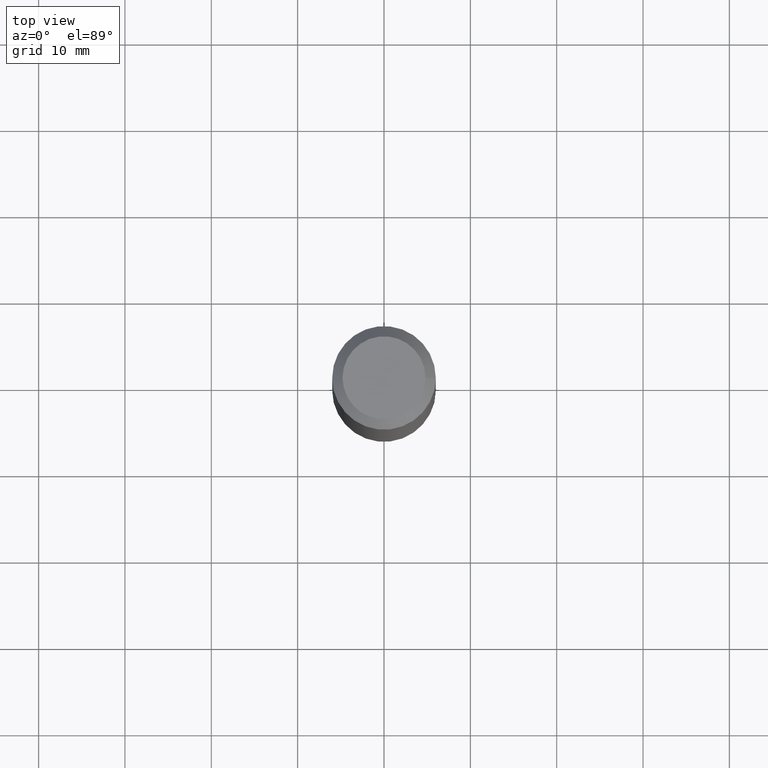
[diagram: clean part render]
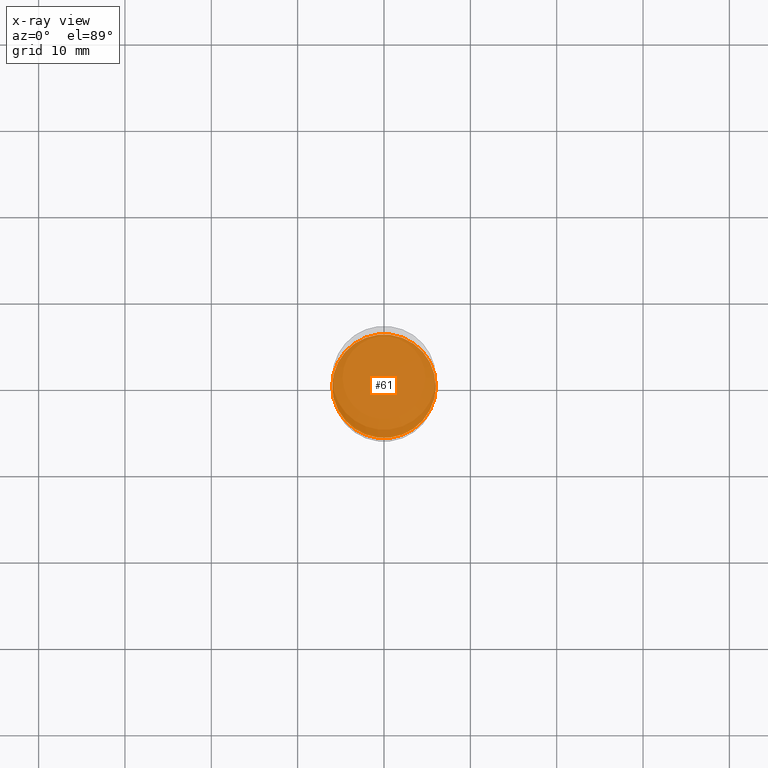
[diagram: x-ray — body ghosted, one internal face saturated and labeled with its STEP entity id]
A machine part, top view, then the same camera in x-ray: the body is ghosted and one INTERNAL B-rep face — a face not visible from any outside direction — is saturated and labeled: STEP entity #61.
In plain terms, the highlighted planar face has unit normal (-0, 0, -1).
Its self-contained STEP definition (entity closure, byte-faithful):
#39 = CIRCLE ( 'NONE', #223, 6.000000000000015099 ) ;
#60 = DIRECTION ( 'NONE',  ( -6.982962677686266711E-15, -0.0000000000000000000, -1.000000000000000000 ) ) ;
#61 = ADVANCED_FACE ( 'NONE', ( #140 ), #117, .F. ) ;
#78 = DIRECTION ( 'NONE',  ( -6.982962677686266711E-15, 0.0000000000000000000, -1.000000000000000000 ) ) ;
#87 = VERTEX_POINT ( 'NONE', #146 ) ;
#98 = DIRECTION ( 'NONE',  ( -1.000000000000000000, 0.0000000000000000000, 6.982962677686266711E-15 ) ) ;
#117 = PLANE ( 'NONE',  #194 ) ;
#140 = FACE_OUTER_BOUND ( 'NONE', #199, .T. ) ;
#142 = ORIENTED_EDGE ( 'NONE', *, *, #149, .F. ) ;
#146 = CARTESIAN_POINT ( 'NONE',  ( 5.999999999999616307, 0.0000000000000000000, -57.00000000000004974 ) ) ;
#149 = EDGE_CURVE ( 'NONE', #87, #87, #39, .T. ) ;
#194 = AXIS2_PLACEMENT_3D ( 'NONE', #206, #78, #98 ) ;
#195 = DIRECTION ( 'NONE',  ( 1.000000000000000000, 0.0000000000000000000, -6.938893903907211023E-15 ) ) ;
#199 = EDGE_LOOP ( 'NONE', ( #142 ) ) ;
#206 = CARTESIAN_POINT ( 'NONE',  ( -3.980288726281172782E-13, 0.0000000000000000000, -57.00000000000000711 ) ) ;
#211 = CARTESIAN_POINT ( 'NONE',  ( -3.980288726281172782E-13, 0.0000000000000000000, -57.00000000000000711 ) ) ;
#223 = AXIS2_PLACEMENT_3D ( 'NONE', #211, #60, #195 ) ;